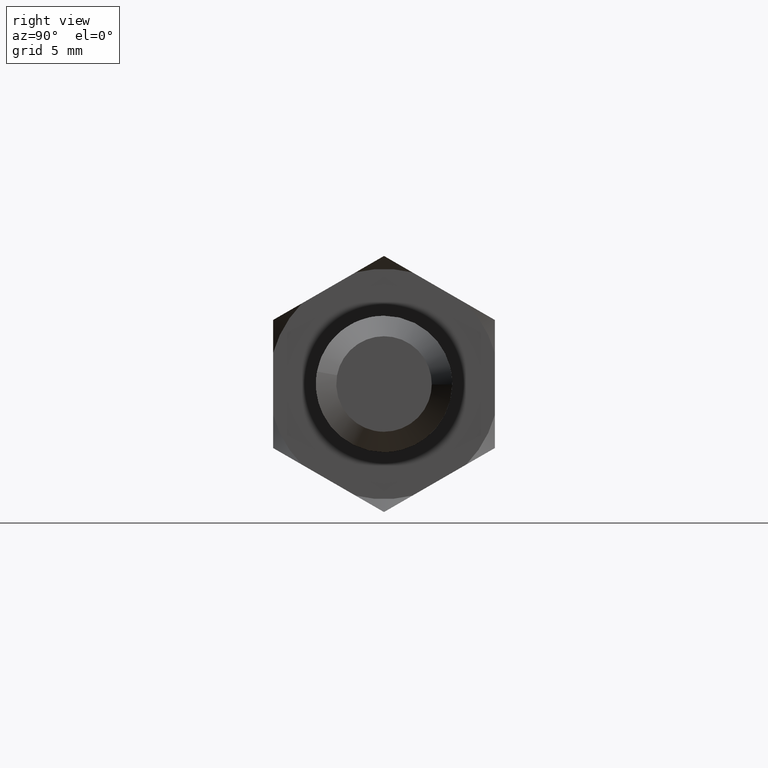
[diagram: clean part render]
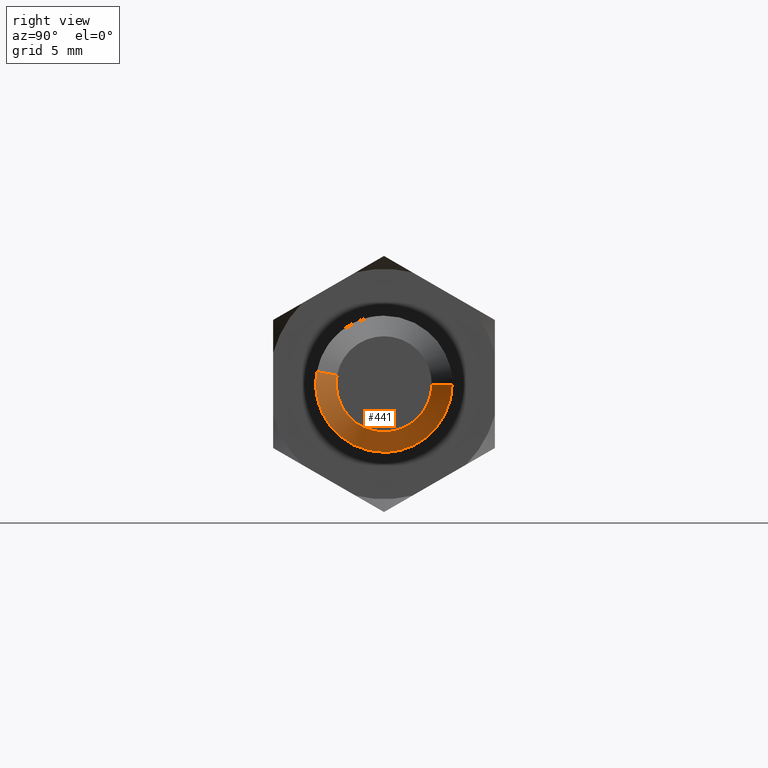
[diagram: same view with one face highlighted and labeled with its STEP entity id]
A machine part, right view. The second image highlights one B-rep face of the part: STEP entity #441.
In plain terms, the highlighted face is a freeform B-spline surface patch.
Its self-contained STEP definition (entity closure, byte-faithful):
#244=CARTESIAN_POINT('',(36.799999999984472,-3.932359569543480,0.732494515982311));
#245=VERTEX_POINT('',#244);
#261=CARTESIAN_POINT('',(37.999999999979337,-2.752651698675086,0.512746161269732));
#262=VERTEX_POINT('',#261);
#263=CARTESIAN_POINT('',(37.999999999979337,-2.752651698675086,0.512746161269732));
#264=CARTESIAN_POINT('',(36.799999999984472,-3.932359569543480,0.732494515982311));
#265=QUASI_UNIFORM_CURVE('',1,(#263,#264),.UNSPECIFIED.,.F.,.U.);
#266=EDGE_CURVE('',#262,#245,#265,.T.);
#283=CARTESIAN_POINT('',(37.999999999977057,2.799893384601154,-0.024434299563725));
#284=VERTEX_POINT('',#283);
#300=CARTESIAN_POINT('',(36.799999999977892,3.999847692277395,-0.034906142155650));
#301=VERTEX_POINT('',#300);
#302=CARTESIAN_POINT('',(37.999999999977057,2.799893384601154,-0.024434299563725));
#303=CARTESIAN_POINT('',(36.799999999977892,3.999847692277395,-0.034906142155650));
#304=QUASI_UNIFORM_CURVE('',1,(#302,#303),.UNSPECIFIED.,.F.,.U.);
#305=EDGE_CURVE('',#284,#301,#304,.T.);
#340=CARTESIAN_POINT('',(38.030000000000008,2.769894526887745,-0.024172503330496));
#341=CARTESIAN_POINT('',(38.030000000000008,2.745722023557250,-2.794067030218240));
#342=CARTESIAN_POINT('',(38.030000000000008,-0.024172503330496,-2.769894526887745));
#343=CARTESIAN_POINT('',(38.030000000000008,-2.794067030218240,-2.745722023557250));
#344=CARTESIAN_POINT('',(38.030000000000008,-2.769894526887745,0.024172503330496));
#345=CARTESIAN_POINT('',(38.030000000000008,-2.767768705318304,0.267767527388552));
#346=CARTESIAN_POINT('',(38.030000000000015,-2.723159001914594,0.507252452228140));
#347=CARTESIAN_POINT('',(36.769249999999992,4.030596521390938,-0.035174482960071));
#348=CARTESIAN_POINT('',(36.769249999999992,3.995422038430867,-4.065771004351008));
#349=CARTESIAN_POINT('',(36.769249999999992,-0.035174482960071,-4.030596521390938));
#350=CARTESIAN_POINT('',(36.769249999999992,-4.065771004351008,-3.995422038430867));
#351=CARTESIAN_POINT('',(36.769249999999992,-4.030596521390938,0.035174482960071));
#352=CARTESIAN_POINT('',(36.769249999999992,-4.027503144029557,0.389640419141306));
#353=CARTESIAN_POINT('',(36.769250000000000,-3.962589583742731,0.738125567443537));
#361=(BOUNDED_SURFACE()B_SPLINE_SURFACE(2,1,((#340,#347),(#341,#348),(#342,#349),(#343,#350),(#344,#351),(#345,#352),(#346,#353)),.UNSPECIFIED.,.F.,.F.,.U.)B_SPLINE_SURFACE_WITH_KNOTS((3,2,2,3),(2,2),(0.0,6.678365266141462,13.356730532282921,14.158134364219899),(0.0,1.0),.UNSPECIFIED.)GEOMETRIC_REPRESENTATION_ITEM()RATIONAL_B_SPLINE_SURFACE(((1.0,1.0),(0.707106781186548,0.707106781186548),(1.0,1.0),(0.707106781186548,0.707106781186548),(1.0,1.0),(0.964852813742386,0.964852813742386),(0.938140952186599,0.938140952186599)))REPRESENTATION_ITEM('')SURFACE());
#362=CARTESIAN_POINT('',(36.799999999999997,-3.972038105450791,-0.472136938659628));
#363=VERTEX_POINT('',#362);
#364=CARTESIAN_POINT('',(36.799999999999997,-3.972038105450792,-0.472136938659628));
#365=CARTESIAN_POINT('',(36.799999999999997,-4.000000000000001,-0.236896478640579));
#366=CARTESIAN_POINT('',(36.799999999999997,-4.0,0.0));
#367=CARTESIAN_POINT('',(36.799999999999997,-4.0,0.369370303848572));
#368=CARTESIAN_POINT('',(36.799999999984458,-3.932359569543480,0.732494515982311));
#376=(BOUNDED_CURVE()B_SPLINE_CURVE(2,(#364,#365,#366,#367,#368),.UNSPECIFIED.,.F.,.U.)B_SPLINE_CURVE_WITH_KNOTS((3,2,3),(0.229562473512871,0.250000000000000,0.281445263723857),.UNSPECIFIED.)CURVE()GEOMETRIC_REPRESENTATION_ITEM()RATIONAL_B_SPLINE_CURVE((0.956026754182449,0.976055948330398,1.0,0.963159581965927,0.935586817218082))REPRESENTATION_ITEM(''));
#377=EDGE_CURVE('',#363,#245,#376,.T.);
#378=ORIENTED_EDGE('',*,*,#377,.F.);
#379=CARTESIAN_POINT('',(36.799999999999997,0.0,-4.0));
#380=VERTEX_POINT('',#379);
#381=CARTESIAN_POINT('',(36.799999999999997,0.0,-4.0));
#382=CARTESIAN_POINT('',(36.799999999999997,-3.552698103746752,-4.0));
#383=CARTESIAN_POINT('',(36.799999999999990,-3.972038105450791,-0.472136938659628));
#391=(BOUNDED_CURVE()B_SPLINE_CURVE(2,(#381,#382,#383),.UNSPECIFIED.,.F.,.U.)B_SPLINE_CURVE_WITH_KNOTS((3,3),(0.0,0.229562473512871),.UNSPECIFIED.)CURVE()GEOMETRIC_REPRESENTATION_ITEM()RATIONAL_B_SPLINE_CURVE((1.0,0.731050832856150,0.956026754182449))REPRESENTATION_ITEM(''));
#392=EDGE_CURVE('',#380,#363,#391,.T.);
#393=ORIENTED_EDGE('',*,*,#392,.F.);
#394=CARTESIAN_POINT('',(36.799999999977892,3.999847692277395,-0.034906142155650));
#395=CARTESIAN_POINT('',(36.799999999999997,3.965244842058780,-4.000000000000000));
#396=CARTESIAN_POINT('',(36.799999999999997,0.0,-4.0));
#404=(BOUNDED_CURVE()B_SPLINE_CURVE(2,(#394,#395,#396),.UNSPECIFIED.,.F.,.U.)B_SPLINE_CURVE_WITH_KNOTS((3,3),(0.751539894349252,1.0),.UNSPECIFIED.)CURVE()GEOMETRIC_REPRESENTATION_ITEM()RATIONAL_B_SPLINE_CURVE((0.996414028067393,0.708910879636888,1.0))REPRESENTATION_ITEM(''));
#405=EDGE_CURVE('',#301,#380,#404,.T.);
#406=ORIENTED_EDGE('',*,*,#405,.F.);
#407=ORIENTED_EDGE('',*,*,#305,.F.);
#408=CARTESIAN_POINT('',(38.0,0.0,-2.800000000000000));
#409=VERTEX_POINT('',#408);
#410=CARTESIAN_POINT('',(38.0,0.0,-2.800000000000000));
#411=CARTESIAN_POINT('',(38.000000000000007,2.775671389332678,-2.800000000000000));
#412=CARTESIAN_POINT('',(37.999999999977057,2.799893384601154,-0.024434299563725));
#420=(BOUNDED_CURVE()B_SPLINE_CURVE(2,(#410,#411,#412),.UNSPECIFIED.,.F.,.U.)B_SPLINE_CURVE_WITH_KNOTS((3,3),(0.0,0.248460105643865),.UNSPECIFIED.)CURVE()GEOMETRIC_REPRESENTATION_ITEM()RATIONAL_B_SPLINE_CURVE((1.0,0.708910879644951,0.996414028051464))REPRESENTATION_ITEM(''));
#421=EDGE_CURVE('',#409,#284,#420,.T.);
#422=ORIENTED_EDGE('',*,*,#421,.F.);
#423=CARTESIAN_POINT('',(37.999999999979337,-2.752651698675086,0.512746161269732));
#424=CARTESIAN_POINT('',(38.0,-2.800000000000000,0.258559212776404));
#425=CARTESIAN_POINT('',(38.0,-2.800000000000000,0.0));
#426=CARTESIAN_POINT('',(37.999999999999993,-2.800000000000000,-2.800000000000000));
#427=CARTESIAN_POINT('',(38.0,0.0,-2.800000000000000));
#435=(BOUNDED_CURVE()B_SPLINE_CURVE(2,(#423,#424,#425,#426,#427),.UNSPECIFIED.,.F.,.U.)B_SPLINE_CURVE_WITH_KNOTS((3,2,3),(0.718554736266490,0.750000000000000,1.0),.UNSPECIFIED.)CURVE()GEOMETRIC_REPRESENTATION_ITEM()RATIONAL_B_SPLINE_CURVE((0.935586817201154,0.963159581954618,1.0,0.707106781186547,1.0))REPRESENTATION_ITEM(''));
#436=EDGE_CURVE('',#262,#409,#435,.T.);
#437=ORIENTED_EDGE('',*,*,#436,.F.);
#438=ORIENTED_EDGE('',*,*,#266,.T.);
#439=EDGE_LOOP('',(#378,#393,#406,#407,#422,#437,#438));
#440=FACE_OUTER_BOUND('',#439,.T.);
#441=ADVANCED_FACE('',(#440),#361,.T.);